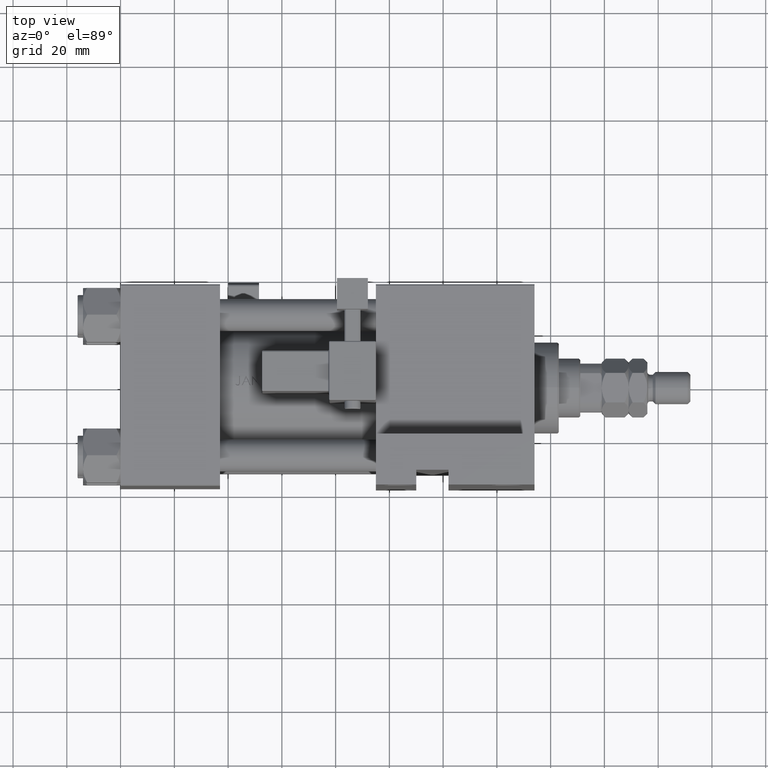
[diagram: clean part render]
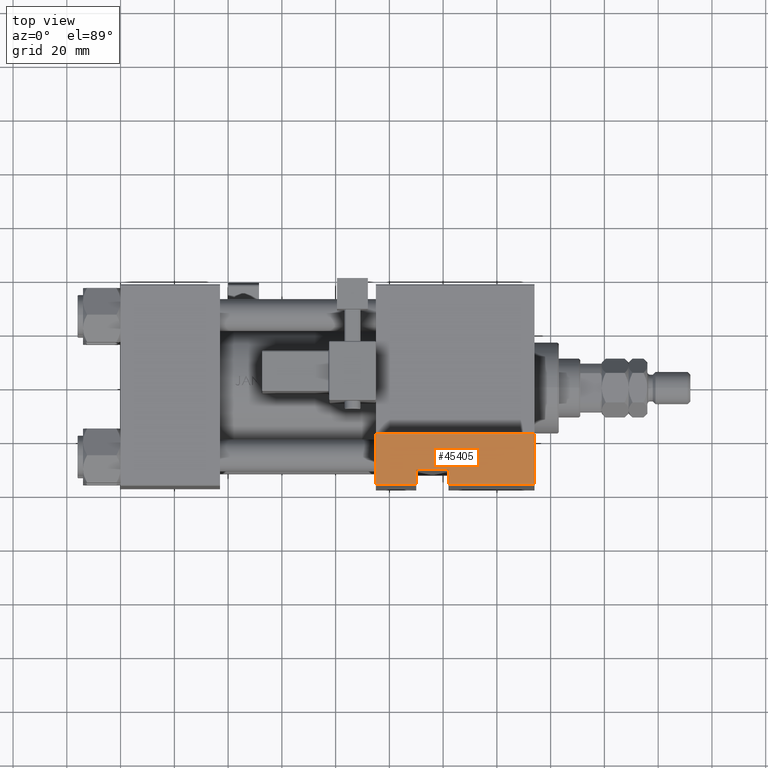
[diagram: same view with one face highlighted and labeled with its STEP entity id]
A machine part, top view. The second image highlights one B-rep face of the part: STEP entity #45405.
In plain terms, the highlighted planar face has unit normal (-0, 0, 1).
Its self-contained STEP definition (entity closure, byte-faithful):
#1686 = DIRECTION ( 'NONE',  ( -0.000000000000000000, -0.000000000000000000, -1.000000000000000000 ) ) ;
#2243 = ORIENTED_EDGE ( 'NONE', *, *, #23963, .T. ) ;
#2382 = DIRECTION ( 'NONE',  ( 1.000000000000000000, -4.704334850106596780E-16, 0.000000000000000000 ) ) ;
#2507 = VERTEX_POINT ( 'NONE', #36256 ) ;
#3198 = LINE ( 'NONE', #19039, #41245 ) ;
#3373 = EDGE_CURVE ( 'NONE', #20103, #48191, #25563, .T. ) ;
#4063 = DIRECTION ( 'NONE',  ( -1.000000000000000000, 4.704334850106596780E-16, -0.000000000000000000 ) ) ;
#5101 = ORIENTED_EDGE ( 'NONE', *, *, #3373, .T. ) ;
#6369 = CARTESIAN_POINT ( 'NONE',  ( 94.99999999999998579, -63.50000000000000000, -18.50000000000000000 ) ) ;
#6834 = CARTESIAN_POINT ( 'NONE',  ( 110.0000000000000000, -63.50000000000000000, -32.00000000000000000 ) ) ;
#7020 = DIRECTION ( 'NONE',  ( 0.000000000000000000, 0.000000000000000000, -1.000000000000000000 ) ) ;
#7297 = FACE_OUTER_BOUND ( 'NONE', #11359, .T. ) ;
#8470 = VECTOR ( 'NONE', #34956, 1000.000000000000000 ) ;
#8745 = DIRECTION ( 'NONE',  ( -0.000000000000000000, -0.000000000000000000, -1.000000000000000000 ) ) ;
#8753 = ORIENTED_EDGE ( 'NONE', *, *, #13362, .F. ) ;
#8819 = VERTEX_POINT ( 'NONE', #17013 ) ;
#8946 = CARTESIAN_POINT ( 'NONE',  ( 122.0000000000000000, -63.50000000000000000, -32.00000000000000000 ) ) ;
#9956 = LINE ( 'NONE', #6834, #42221 ) ;
#10826 = LINE ( 'NONE', #26681, #27515 ) ;
#10838 = VERTEX_POINT ( 'NONE', #11720 ) ;
#11359 = EDGE_LOOP ( 'NONE', ( #5101, #38411, #8753, #18525, #2243, #11915, #39258, #17266 ) ) ;
#11720 = CARTESIAN_POINT ( 'NONE',  ( 153.9999999999999716, -63.50000000000002842, -37.50000000000000000 ) ) ;
#11915 = ORIENTED_EDGE ( 'NONE', *, *, #43993, .F. ) ;
#12959 = VECTOR ( 'NONE', #26556, 1000.000000000000000 ) ;
#13066 = EDGE_CURVE ( 'NONE', #13469, #2507, #18316, .T. ) ;
#13362 = EDGE_CURVE ( 'NONE', #13469, #10838, #35343, .T. ) ;
#13469 = VERTEX_POINT ( 'NONE', #24148 ) ;
#16354 = CARTESIAN_POINT ( 'NONE',  ( 110.0000000000000000, -63.50000000000000000, -37.50000000000000000 ) ) ;
#17013 = CARTESIAN_POINT ( 'NONE',  ( 94.99999999999998579, -63.50000000000000000, -37.50000000000000000 ) ) ;
#17266 = ORIENTED_EDGE ( 'NONE', *, *, #34031, .F. ) ;
#17955 = DIRECTION ( 'NONE',  ( -4.704334850106596780E-16, -1.000000000000000000, 0.000000000000000000 ) ) ;
#18316 = LINE ( 'NONE', #6369, #8470 ) ;
#18525 = ORIENTED_EDGE ( 'NONE', *, *, #13066, .T. ) ;
#19039 = CARTESIAN_POINT ( 'NONE',  ( 94.99999999999998579, -63.50000000000000000, -18.50000000000000000 ) ) ;
#20103 = VERTEX_POINT ( 'NONE', #42768 ) ;
#20955 = CARTESIAN_POINT ( 'NONE',  ( 110.0000000000000000, -63.50000000000000000, -32.00000000000000000 ) ) ;
#21437 = CARTESIAN_POINT ( 'NONE',  ( 94.99999999999998579, -63.50000000000000000, -37.50000000000000000 ) ) ;
#21700 = VERTEX_POINT ( 'NONE', #44187 ) ;
#22719 = EDGE_CURVE ( 'NONE', #10838, #48191, #40938, .T. ) ;
#23556 = VECTOR ( 'NONE', #8745, 1000.000000000000000 ) ;
#23963 = EDGE_CURVE ( 'NONE', #2507, #8819, #3198, .T. ) ;
#24148 = CARTESIAN_POINT ( 'NONE',  ( 153.9999999999999716, -63.50000000000002842, -18.50000000000000000 ) ) ;
#25563 = LINE ( 'NONE', #8946, #47936 ) ;
#26556 = DIRECTION ( 'NONE',  ( -1.000000000000000000, 4.704334850106596780E-16, -0.000000000000000000 ) ) ;
#26681 = CARTESIAN_POINT ( 'NONE',  ( 94.99999999999998579, -63.50000000000000000, -37.50000000000000000 ) ) ;
#26739 = AXIS2_PLACEMENT_3D ( 'NONE', #42912, #17955, #2382 ) ;
#27515 = VECTOR ( 'NONE', #4063, 1000.000000000000000 ) ;
#30732 = DIRECTION ( 'NONE',  ( 0.000000000000000000, 0.000000000000000000, -1.000000000000000000 ) ) ;
#30793 = EDGE_CURVE ( 'NONE', #21700, #31412, #44365, .T. ) ;
#31412 = VERTEX_POINT ( 'NONE', #16354 ) ;
#34031 = EDGE_CURVE ( 'NONE', #20103, #21700, #9956, .T. ) ;
#34956 = DIRECTION ( 'NONE',  ( -1.000000000000000000, 4.704334850106596780E-16, -0.000000000000000000 ) ) ;
#35343 = LINE ( 'NONE', #51212, #39204 ) ;
#36256 = CARTESIAN_POINT ( 'NONE',  ( 94.99999999999998579, -63.50000000000000000, -18.50000000000000000 ) ) ;
#37982 = PLANE ( 'NONE',  #26739 ) ;
#38411 = ORIENTED_EDGE ( 'NONE', *, *, #22719, .F. ) ;
#38561 = DIRECTION ( 'NONE',  ( -1.000000000000000000, -0.000000000000000000, -0.000000000000000000 ) ) ;
#39204 = VECTOR ( 'NONE', #7020, 1000.000000000000000 ) ;
#39258 = ORIENTED_EDGE ( 'NONE', *, *, #30793, .F. ) ;
#40938 = LINE ( 'NONE', #21437, #12959 ) ;
#41245 = VECTOR ( 'NONE', #30732, 1000.000000000000000 ) ;
#42221 = VECTOR ( 'NONE', #38561, 1000.000000000000000 ) ;
#42768 = CARTESIAN_POINT ( 'NONE',  ( 122.0000000000000000, -63.50000000000001421, -32.00000000000000000 ) ) ;
#42912 = CARTESIAN_POINT ( 'NONE',  ( 94.99999999999998579, -63.50000000000000000, -18.50000000000000000 ) ) ;
#43993 = EDGE_CURVE ( 'NONE', #31412, #8819, #10826, .T. ) ;
#44187 = CARTESIAN_POINT ( 'NONE',  ( 110.0000000000000000, -63.50000000000000000, -32.00000000000000000 ) ) ;
#44365 = LINE ( 'NONE', #20955, #23556 ) ;
#44974 = CARTESIAN_POINT ( 'NONE',  ( 122.0000000000000000, -63.50000000000000000, -37.50000000000000000 ) ) ;
#45405 = ADVANCED_FACE ( 'NONE', ( #7297 ), #37982, .T. ) ;
#47936 = VECTOR ( 'NONE', #1686, 1000.000000000000000 ) ;
#48191 = VERTEX_POINT ( 'NONE', #44974 ) ;
#51212 = CARTESIAN_POINT ( 'NONE',  ( 153.9999999999999716, -63.50000000000002842, -18.50000000000000000 ) ) ;